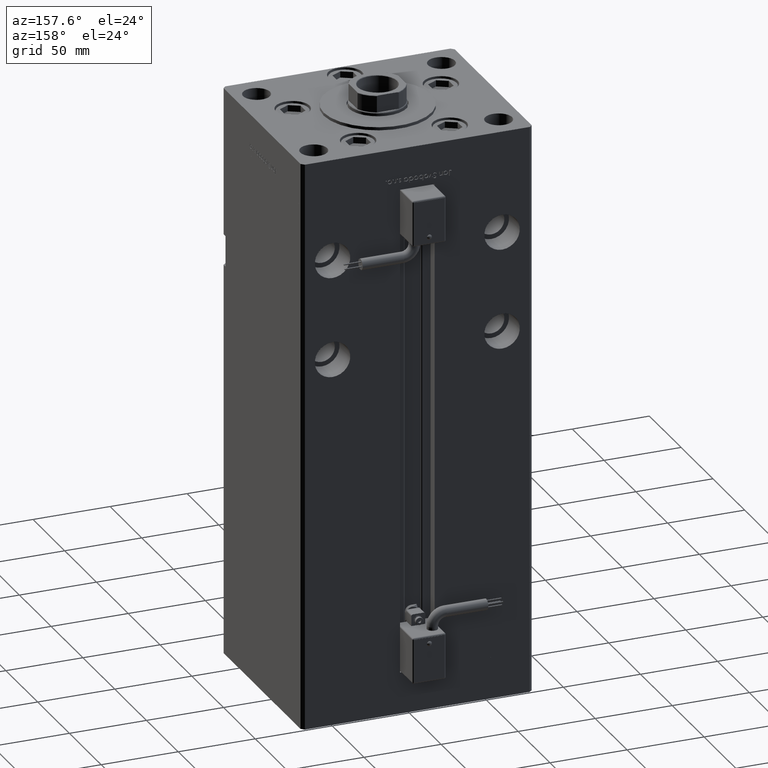
[diagram: clean part render]
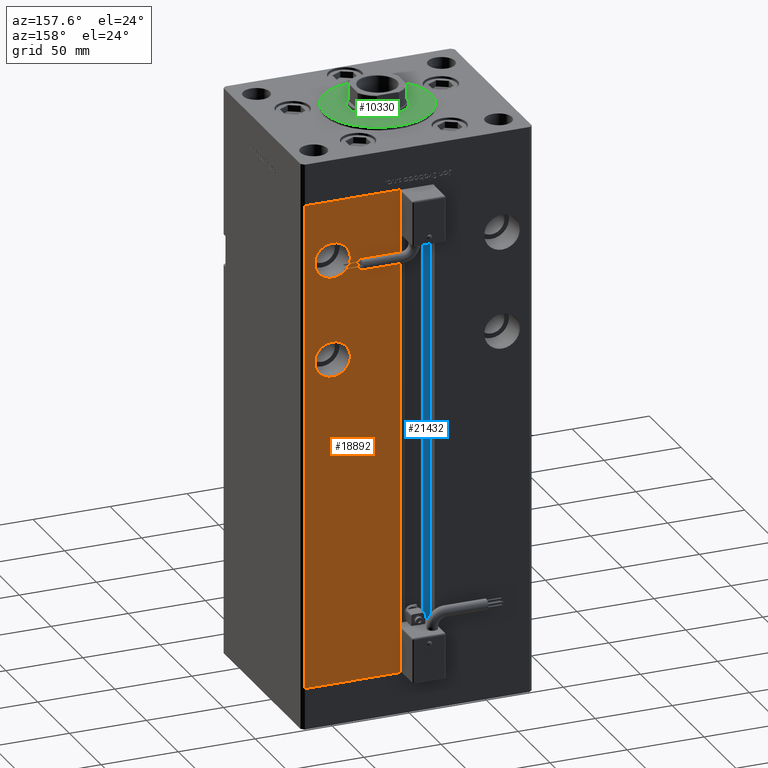
[diagram: same view with three faces highlighted in distinct colors, each labeled with its STEP entity id]
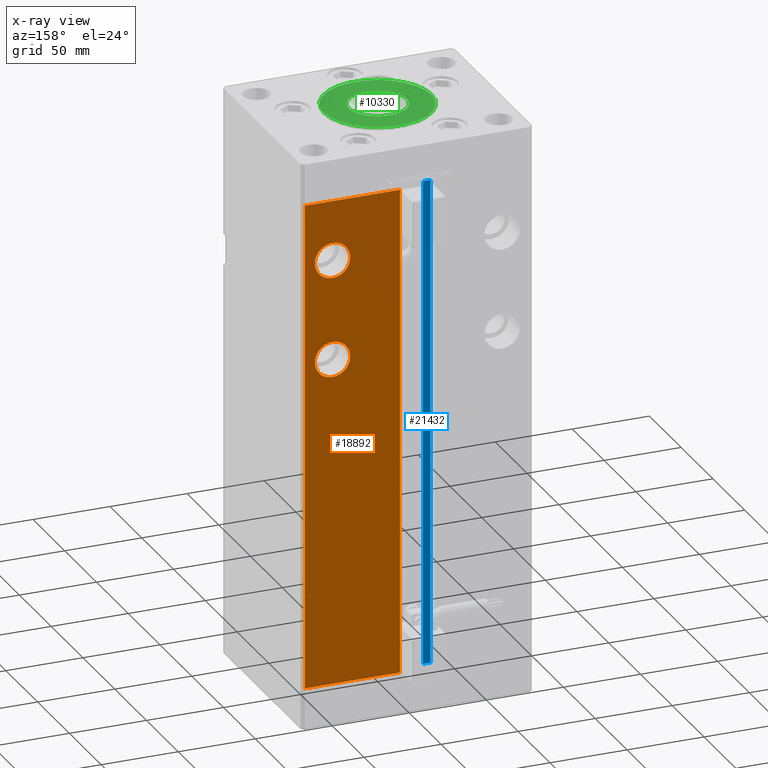
[diagram: x-ray of the same camera — body ghosted, the three highlighted faces saturated]
A machine part, auxiliary view with three faces highlighted in distinct colors.
The next image is the same camera in x-ray (body ghosted, the three faces saturated) — at least one of them is partly hidden behind the body in this view.
Their STEP definitions:

[orange] entity #18892 — the highlighted planar face has unit normal (0, -1, 0).
#1071 = CARTESIAN_POINT ( 'NONE',  ( 73.00000000000001421, 62.50000000000000000, 317.0000000000000000 ) ) ;
#1675 = DIRECTION ( 'NONE',  ( 0.000000000000000000, 1.000000000000000000, -0.000000000000000000 ) ) ;
#2605 = DIRECTION ( 'NONE',  ( 0.000000000000000000, -1.000000000000000000, 0.000000000000000000 ) ) ;
#2681 = CARTESIAN_POINT ( 'NONE',  ( 55.00000000000000000, 62.50000000000000000, 213.0000000000000000 ) ) ;
#5574 = CARTESIAN_POINT ( 'NONE',  ( 55.00000000000000000, 62.50000000000000000, 277.9999999999999432 ) ) ;
#5849 = VERTEX_POINT ( 'NONE', #8188 ) ;
#7037 = CIRCLE ( 'NONE', #51424, 11.50000000000001066 ) ;
#7471 = VERTEX_POINT ( 'NONE', #14558 ) ;
#8188 = CARTESIAN_POINT ( 'NONE',  ( 55.00000000000000000, 62.50000000000000000, 289.5000000000000000 ) ) ;
#8521 = ORIENTED_EDGE ( 'NONE', *, *, #19048, .T. ) ;
#8907 = CIRCLE ( 'NONE', #9794, 11.50000000000001066 ) ;
#9467 = EDGE_CURVE ( 'NONE', #50963, #7471, #24734, .T. ) ;
#9794 = AXIS2_PLACEMENT_3D ( 'NONE', #2681, #45738, #50554 ) ;
#9806 = DIRECTION ( 'NONE',  ( 0.000000000000000000, 1.000000000000000000, 0.000000000000000000 ) ) ;
#10081 = DIRECTION ( 'NONE',  ( 0.000000000000000000, 0.000000000000000000, 1.000000000000000000 ) ) ;
#11470 = VERTEX_POINT ( 'NONE', #30235 ) ;
#12889 = ORIENTED_EDGE ( 'NONE', *, *, #30183, .F. ) ;
#12983 = EDGE_CURVE ( 'NONE', #27977, #38488, #13256, .T. ) ;
#13237 = VECTOR ( 'NONE', #29135, 1000.000000000000000 ) ;
#13256 = LINE ( 'NONE', #1071, #32282 ) ;
#14005 = ORIENTED_EDGE ( 'NONE', *, *, #29013, .F. ) ;
#14558 = CARTESIAN_POINT ( 'NONE',  ( 11.24999999999999467, 62.50000000000000000, 317.0000000000000000 ) ) ;
#14843 = DIRECTION ( 'NONE',  ( 0.000000000000000000, 1.000000000000000000, 0.000000000000000000 ) ) ;
#14986 = EDGE_LOOP ( 'NONE', ( #19844, #26194, #8521, #36679 ) ) ;
#14996 = DIRECTION ( 'NONE',  ( 0.000000000000000000, 0.000000000000000000, -1.000000000000000000 ) ) ;
#16037 = AXIS2_PLACEMENT_3D ( 'NONE', #5574, #9806, #10081 ) ;
#16116 = CARTESIAN_POINT ( 'NONE',  ( 73.00000000000001421, 62.50000000000000000, 0.000000000000000000 ) ) ;
#16773 = LINE ( 'NONE', #21860, #20772 ) ;
#18892 = ADVANCED_FACE ( 'NONE', ( #28654, #20171, #32907 ), #33185, .F. ) ;
#19048 = EDGE_CURVE ( 'NONE', #7471, #27977, #16773, .T. ) ;
#19450 = EDGE_LOOP ( 'NONE', ( #38136, #14005 ) ) ;
#19844 = ORIENTED_EDGE ( 'NONE', *, *, #24116, .T. ) ;
#20171 = FACE_BOUND ( 'NONE', #19450, .T. ) ;
#20772 = VECTOR ( 'NONE', #50752, 1000.000000000000000 ) ;
#21828 = EDGE_CURVE ( 'NONE', #34649, #11470, #45274, .T. ) ;
#21860 = CARTESIAN_POINT ( 'NONE',  ( -11.25000000000000178, 62.50000000000000000, 317.0000000000000000 ) ) ;
#23576 = LINE ( 'NONE', #45100, #13237 ) ;
#24116 = EDGE_CURVE ( 'NONE', #38488, #50963, #23576, .T. ) ;
#24734 = LINE ( 'NONE', #41731, #55698 ) ;
#25470 = ORIENTED_EDGE ( 'NONE', *, *, #21828, .F. ) ;
#26194 = ORIENTED_EDGE ( 'NONE', *, *, #9467, .T. ) ;
#26455 = EDGE_CURVE ( 'NONE', #5849, #50340, #39560, .T. ) ;
#27977 = VERTEX_POINT ( 'NONE', #37740 ) ;
#28654 = FACE_BOUND ( 'NONE', #42887, .T. ) ;
#29013 = EDGE_CURVE ( 'NONE', #50340, #5849, #7037, .T. ) ;
#29135 = DIRECTION ( 'NONE',  ( -1.000000000000000000, 0.000000000000000000, 0.000000000000000000 ) ) ;
#30183 = EDGE_CURVE ( 'NONE', #11470, #34649, #8907, .T. ) ;
#30235 = CARTESIAN_POINT ( 'NONE',  ( 55.00000000000000000, 62.50000000000000000, 224.5000000000000000 ) ) ;
#31836 = DIRECTION ( 'NONE',  ( 0.000000000000000000, 0.000000000000000000, 1.000000000000000000 ) ) ;
#32262 = CARTESIAN_POINT ( 'NONE',  ( 55.00000000000000000, 62.50000000000000000, 266.4999999999999432 ) ) ;
#32282 = VECTOR ( 'NONE', #35912, 1000.000000000000000 ) ;
#32907 = FACE_OUTER_BOUND ( 'NONE', #14986, .T. ) ;
#33185 = PLANE ( 'NONE',  #44250 ) ;
#34649 = VERTEX_POINT ( 'NONE', #40956 ) ;
#35912 = DIRECTION ( 'NONE',  ( -0.000000000000000000, -0.000000000000000000, -1.000000000000000000 ) ) ;
#36679 = ORIENTED_EDGE ( 'NONE', *, *, #12983, .T. ) ;
#37740 = CARTESIAN_POINT ( 'NONE',  ( 73.00000000000001421, 62.50000000000000000, 317.0000000000000000 ) ) ;
#38136 = ORIENTED_EDGE ( 'NONE', *, *, #26455, .F. ) ;
#38488 = VERTEX_POINT ( 'NONE', #16116 ) ;
#39560 = CIRCLE ( 'NONE', #16037, 11.50000000000001066 ) ;
#40330 = CARTESIAN_POINT ( 'NONE',  ( 55.00000000000000000, 62.50000000000000000, 277.9999999999999432 ) ) ;
#40956 = CARTESIAN_POINT ( 'NONE',  ( 55.00000000000000000, 62.50000000000000000, 201.4999999999999716 ) ) ;
#41691 = DIRECTION ( 'NONE',  ( 0.000000000000000000, -0.000000000000000000, -1.000000000000000000 ) ) ;
#41731 = CARTESIAN_POINT ( 'NONE',  ( 11.25000000000000178, 62.50000000000000000, 0.000000000000000000 ) ) ;
#42887 = EDGE_LOOP ( 'NONE', ( #12889, #25470 ) ) ;
#44250 = AXIS2_PLACEMENT_3D ( 'NONE', #45938, #2605, #41691 ) ;
#45100 = CARTESIAN_POINT ( 'NONE',  ( -11.25000000000000178, 62.50000000000000000, 0.000000000000000000 ) ) ;
#45274 = CIRCLE ( 'NONE', #46150, 11.50000000000001066 ) ;
#45738 = DIRECTION ( 'NONE',  ( 0.000000000000000000, 1.000000000000000000, -0.000000000000000000 ) ) ;
#45938 = CARTESIAN_POINT ( 'NONE',  ( -11.25000000000000178, 62.50000000000000000, 317.0000000000000000 ) ) ;
#46150 = AXIS2_PLACEMENT_3D ( 'NONE', #49830, #1675, #14996 ) ;
#47546 = CARTESIAN_POINT ( 'NONE',  ( 11.25000000000000178, 62.50000000000000000, 0.000000000000000000 ) ) ;
#49830 = CARTESIAN_POINT ( 'NONE',  ( 55.00000000000000000, 62.50000000000000000, 213.0000000000000000 ) ) ;
#50340 = VERTEX_POINT ( 'NONE', #32262 ) ;
#50554 = DIRECTION ( 'NONE',  ( 0.000000000000000000, 0.000000000000000000, -1.000000000000000000 ) ) ;
#50752 = DIRECTION ( 'NONE',  ( 1.000000000000000000, 0.000000000000000000, 0.000000000000000000 ) ) ;
#50963 = VERTEX_POINT ( 'NONE', #47546 ) ;
#51424 = AXIS2_PLACEMENT_3D ( 'NONE', #40330, #14843, #31836 ) ;
#53949 = DIRECTION ( 'NONE',  ( -0.000000000000000000, -0.000000000000000000, 1.000000000000000000 ) ) ;
#55698 = VECTOR ( 'NONE', #53949, 1000.000000000000000 ) ;

[blue] entity #21432 — the highlighted planar face has unit normal (0, -1, 0).
#338 = CARTESIAN_POINT ( 'NONE',  ( -6.183333333334001480, 56.00000000000000000, 317.0000000000000000 ) ) ;
#856 = VERTEX_POINT ( 'NONE', #12335 ) ;
#2015 = FACE_OUTER_BOUND ( 'NONE', #31952, .T. ) ;
#2432 = EDGE_CURVE ( 'NONE', #37751, #856, #5597, .T. ) ;
#2571 = DIRECTION ( 'NONE',  ( 0.000000000000000000, 0.000000000000000000, -1.000000000000000000 ) ) ;
#5597 = LINE ( 'NONE', #40139, #14869 ) ;
#6691 = CARTESIAN_POINT ( 'NONE',  ( -11.25000000000000178, 56.00000000000000000, 0.000000000000000000 ) ) ;
#10511 = DIRECTION ( 'NONE',  ( 0.000000000000000000, -1.000000000000000000, -0.000000000000000000 ) ) ;
#10812 = VERTEX_POINT ( 'NONE', #338 ) ;
#12335 = CARTESIAN_POINT ( 'NONE',  ( -6.183333333334001480, 56.00000000000000000, 0.000000000000000000 ) ) ;
#14605 = DIRECTION ( 'NONE',  ( -0.000000000000000000, -0.000000000000000000, 1.000000000000000000 ) ) ;
#14869 = VECTOR ( 'NONE', #18630, 1000.000000000000000 ) ;
#18630 = DIRECTION ( 'NONE',  ( 1.000000000000000000, -0.000000000000000000, -0.000000000000000000 ) ) ;
#19595 = CARTESIAN_POINT ( 'NONE',  ( -6.183333333334001480, 56.00000000000000000, 0.000000000000000000 ) ) ;
#20652 = VERTEX_POINT ( 'NONE', #55663 ) ;
#21432 = ADVANCED_FACE ( 'NONE', ( #2015 ), #50442, .F. ) ;
#22905 = ORIENTED_EDGE ( 'NONE', *, *, #35687, .F. ) ;
#23390 = LINE ( 'NONE', #53426, #44978 ) ;
#25405 = VECTOR ( 'NONE', #47515, 1000.000000000000000 ) ;
#26738 = EDGE_CURVE ( 'NONE', #37751, #20652, #23390, .T. ) ;
#28042 = AXIS2_PLACEMENT_3D ( 'NONE', #19595, #10511, #2571 ) ;
#30502 = EDGE_CURVE ( 'NONE', #856, #10812, #48261, .T. ) ;
#30978 = CARTESIAN_POINT ( 'NONE',  ( -6.183333333334001480, 56.00000000000000000, 0.000000000000000000 ) ) ;
#31952 = EDGE_LOOP ( 'NONE', ( #42362, #43138, #45254, #22905 ) ) ;
#35687 = EDGE_CURVE ( 'NONE', #10812, #20652, #52340, .T. ) ;
#37751 = VERTEX_POINT ( 'NONE', #6691 ) ;
#40139 = CARTESIAN_POINT ( 'NONE',  ( -6.183333333334001480, 56.00000000000000000, 0.000000000000000000 ) ) ;
#42362 = ORIENTED_EDGE ( 'NONE', *, *, #30502, .F. ) ;
#43138 = ORIENTED_EDGE ( 'NONE', *, *, #2432, .F. ) ;
#44978 = VECTOR ( 'NONE', #14605, 1000.000000000000000 ) ;
#45254 = ORIENTED_EDGE ( 'NONE', *, *, #26738, .T. ) ;
#46910 = VECTOR ( 'NONE', #52520, 1000.000000000000000 ) ;
#47515 = DIRECTION ( 'NONE',  ( -1.000000000000000000, 0.000000000000000000, 0.000000000000000000 ) ) ;
#48261 = LINE ( 'NONE', #30978, #46910 ) ;
#50442 = PLANE ( 'NONE',  #28042 ) ;
#52064 = CARTESIAN_POINT ( 'NONE',  ( 0.000000000000000000, 56.00000000000000000, 317.0000000000000000 ) ) ;
#52340 = LINE ( 'NONE', #52064, #25405 ) ;
#52520 = DIRECTION ( 'NONE',  ( -0.000000000000000000, -0.000000000000000000, 1.000000000000000000 ) ) ;
#53426 = CARTESIAN_POINT ( 'NONE',  ( -11.25000000000000178, 56.00000000000000000, 0.000000000000000000 ) ) ;
#55663 = CARTESIAN_POINT ( 'NONE',  ( -11.25000000000000178, 56.00000000000000000, 317.0000000000000000 ) ) ;

[green] entity #10330 — the highlighted planar face has unit normal (0, 0, 1).
#473 = FACE_OUTER_BOUND ( 'NONE', #11988, .T. ) ;
#3901 = DIRECTION ( 'NONE',  ( 0.000000000000000000, 0.000000000000000000, 1.000000000000000000 ) ) ;
#7112 = ORIENTED_EDGE ( 'NONE', *, *, #28300, .F. ) ;
#8821 = AXIS2_PLACEMENT_3D ( 'NONE', #25486, #42762, #52392 ) ;
#9022 = VERTEX_POINT ( 'NONE', #28285 ) ;
#10330 = ADVANCED_FACE ( 'NONE', ( #22024, #473 ), #17217, .T. ) ;
#11988 = EDGE_LOOP ( 'NONE', ( #18332, #47261 ) ) ;
#16319 = CIRCLE ( 'NONE', #41653, 18.75000000000000355 ) ;
#16975 = CIRCLE ( 'NONE', #8821, 18.75000000000000355 ) ;
#17217 = PLANE ( 'NONE',  #33080 ) ;
#18043 = VERTEX_POINT ( 'NONE', #35640 ) ;
#18332 = ORIENTED_EDGE ( 'NONE', *, *, #20034, .T. ) ;
#20034 = EDGE_CURVE ( 'NONE', #33616, #18043, #38751, .T. ) ;
#20146 = AXIS2_PLACEMENT_3D ( 'NONE', #41852, #29945, #46381 ) ;
#20911 = CARTESIAN_POINT ( 'NONE',  ( 0.000000000000000000, -6.938893903907228378E-15, 2.000000000000000000 ) ) ;
#22024 = FACE_BOUND ( 'NONE', #23413, .T. ) ;
#23413 = EDGE_LOOP ( 'NONE', ( #7112, #33391 ) ) ;
#25469 = VERTEX_POINT ( 'NONE', #53149 ) ;
#25486 = CARTESIAN_POINT ( 'NONE',  ( 0.000000000000000000, -6.938893903907228378E-15, 2.000000000000000000 ) ) ;
#26599 = DIRECTION ( 'NONE',  ( 0.000000000000000000, 0.000000000000000000, 1.000000000000000000 ) ) ;
#28285 = CARTESIAN_POINT ( 'NONE',  ( 18.75000000000000355, -6.938893903907228378E-15, 2.000000000000000000 ) ) ;
#28300 = EDGE_CURVE ( 'NONE', #9022, #25469, #16975, .T. ) ;
#28803 = CARTESIAN_POINT ( 'NONE',  ( -35.00000000000000711, -6.938893903907228378E-15, 2.000000000000000000 ) ) ;
#29945 = DIRECTION ( 'NONE',  ( 0.000000000000000000, 0.000000000000000000, 1.000000000000000000 ) ) ;
#33080 = AXIS2_PLACEMENT_3D ( 'NONE', #52053, #35034, #47788 ) ;
#33391 = ORIENTED_EDGE ( 'NONE', *, *, #34695, .F. ) ;
#33616 = VERTEX_POINT ( 'NONE', #28803 ) ;
#33925 = DIRECTION ( 'NONE',  ( 1.000000000000000000, 0.000000000000000000, 0.000000000000000000 ) ) ;
#34695 = EDGE_CURVE ( 'NONE', #25469, #9022, #16319, .T. ) ;
#35034 = DIRECTION ( 'NONE',  ( 0.000000000000000000, 0.000000000000000000, 1.000000000000000000 ) ) ;
#35640 = CARTESIAN_POINT ( 'NONE',  ( 35.00000000000000711, -2.652630106891490698E-15, 2.000000000000000000 ) ) ;
#38751 = CIRCLE ( 'NONE', #45974, 35.00000000000000711 ) ;
#41653 = AXIS2_PLACEMENT_3D ( 'NONE', #20911, #3901, #33925 ) ;
#41808 = CIRCLE ( 'NONE', #20146, 35.00000000000000711 ) ;
#41852 = CARTESIAN_POINT ( 'NONE',  ( 0.000000000000000000, -6.938893903907228378E-15, 2.000000000000000000 ) ) ;
#42762 = DIRECTION ( 'NONE',  ( 0.000000000000000000, 0.000000000000000000, 1.000000000000000000 ) ) ;
#44155 = CARTESIAN_POINT ( 'NONE',  ( 0.000000000000000000, -6.938893903907228378E-15, 2.000000000000000000 ) ) ;
#44438 = EDGE_CURVE ( 'NONE', #18043, #33616, #41808, .T. ) ;
#45974 = AXIS2_PLACEMENT_3D ( 'NONE', #44155, #26599, #48129 ) ;
#46381 = DIRECTION ( 'NONE',  ( 1.000000000000000000, 0.000000000000000000, 0.000000000000000000 ) ) ;
#47261 = ORIENTED_EDGE ( 'NONE', *, *, #44438, .T. ) ;
#47788 = DIRECTION ( 'NONE',  ( 1.000000000000000000, 0.000000000000000000, -0.000000000000000000 ) ) ;
#48129 = DIRECTION ( 'NONE',  ( 1.000000000000000000, 0.000000000000000000, 0.000000000000000000 ) ) ;
#52053 = CARTESIAN_POINT ( 'NONE',  ( 0.000000000000000000, -6.938893903907228378E-15, 2.000000000000000000 ) ) ;
#52392 = DIRECTION ( 'NONE',  ( 1.000000000000000000, 0.000000000000000000, 0.000000000000000000 ) ) ;
#53149 = CARTESIAN_POINT ( 'NONE',  ( -18.75000000000000355, -4.642681155505941194E-15, 2.000000000000000000 ) ) ;